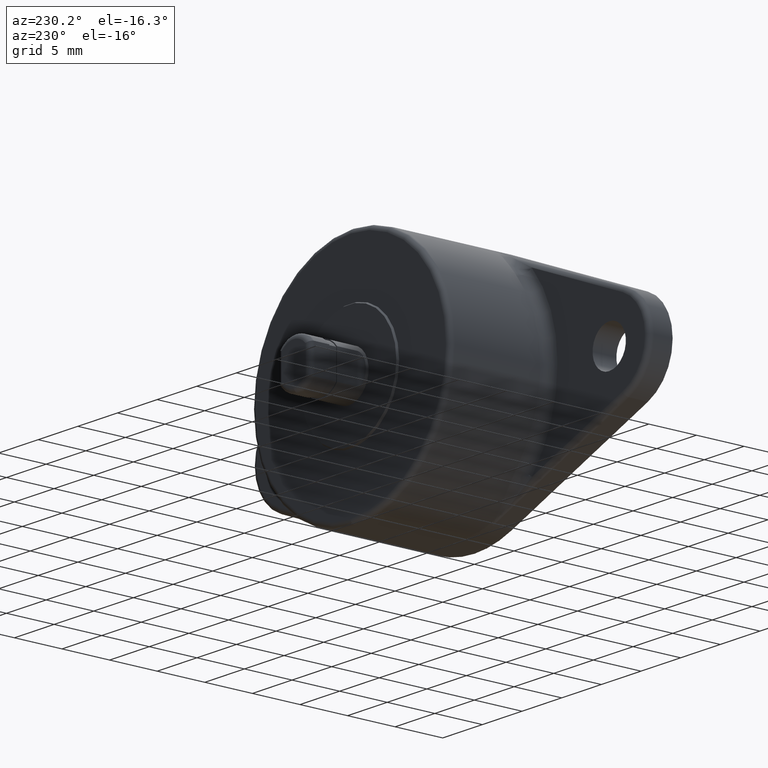
[diagram: clean part render]
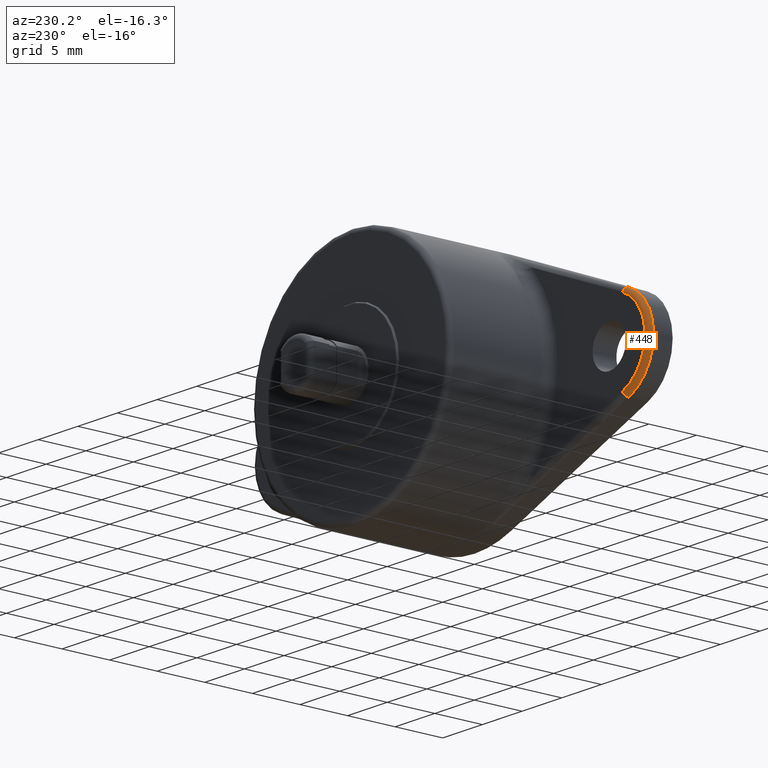
[diagram: same view with one face highlighted and labeled with its STEP entity id]
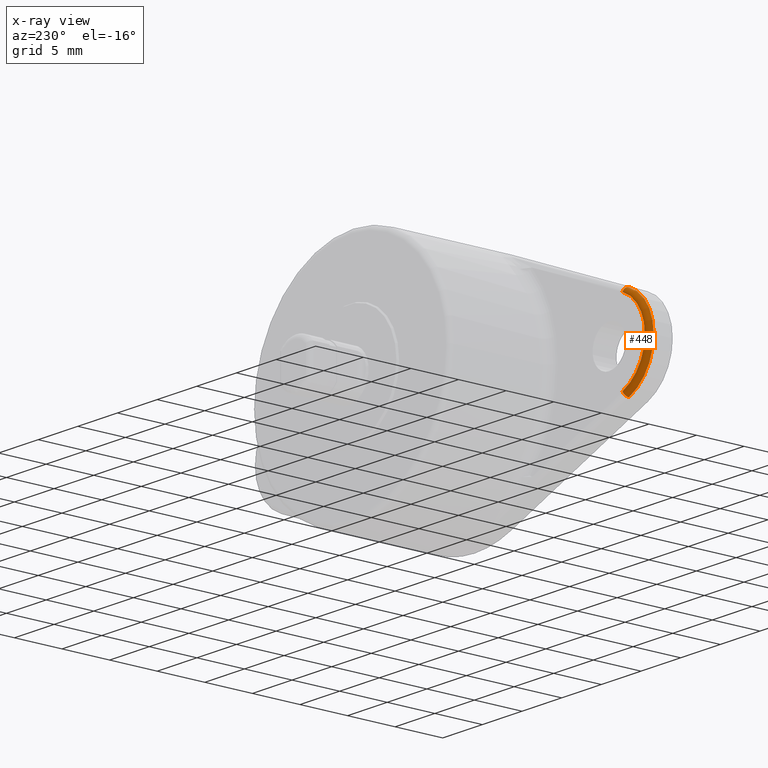
[diagram: x-ray of the same camera — body ghosted, the highlighted face saturated]
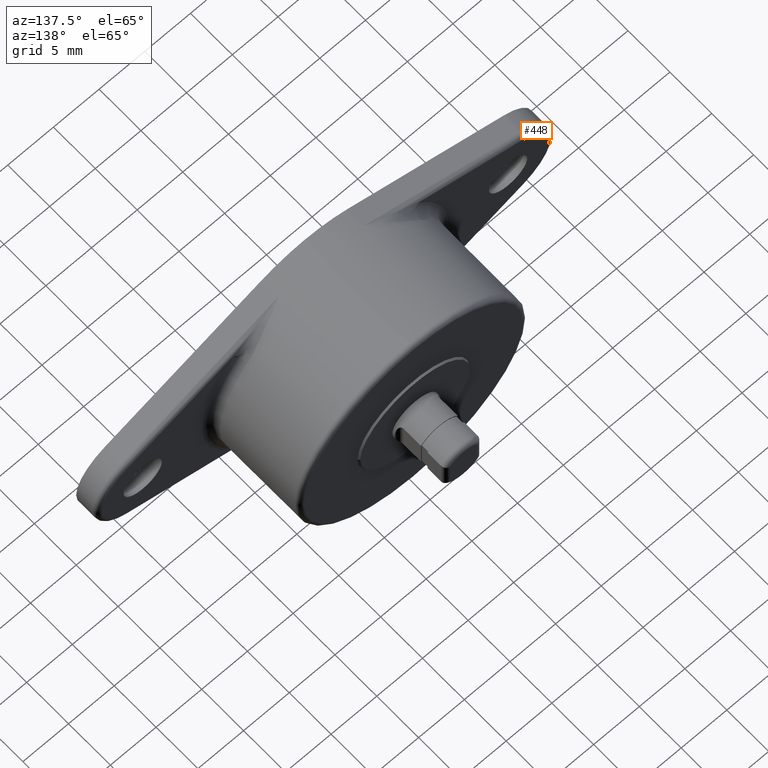
[diagram: same view with one face highlighted and labeled with its STEP entity id]
A machine part, auxiliary view. The second image highlights one B-rep face of the part: STEP entity #448.
The next image is the same camera in x-ray: the body ghosted, the highlighted face saturated — about 0% of this face is hidden behind the body in this view.
A second angle (auxiliary view) of the same face is appended — the face is thin or edge-on in the first view.
In plain terms, the highlighted toroidal blend (fillet) surface has major radius 4.5 mm and minor (blend) radius 0.5 mm.
Its self-contained STEP definition (entity closure, byte-faithful):
#66 = DIRECTION ( 'NONE',  ( 0.0000000000000000000, -1.000000000000000000, 0.0000000000000000000 ) ) ;
#189 = CARTESIAN_POINT ( 'NONE',  ( -21.68749999959866800, 1.999999999115181800, 4.171611647764398100 ) ) ;
#267 = EDGE_CURVE ( 'NONE', #1635, #756, #1520, .T. ) ;
#328 = EDGE_CURVE ( 'NONE', #1635, #1227, #1928, .T. ) ;
#337 = DIRECTION ( 'NONE',  ( 0.3750000000181397700, 0.0000000000000000000, -0.9270248108796200800 ) ) ;
#406 = EDGE_CURVE ( 'NONE', #1698, #756, #1216, .T. ) ;
#437 = CARTESIAN_POINT ( 'NONE',  ( -21.68749999959866800, 2.500000000000000400, 4.171611647764398100 ) ) ;
#442 = DIRECTION ( 'NONE',  ( -0.9270248108836987000, 0.0000000000000000000, 0.3750000000080569400 ) ) ;
#448 = ADVANCED_FACE ( 'NONE', ( #1174 ), #1988, .T. ) ;
#494 = EDGE_LOOP ( 'NONE', ( #1022, #1932, #1131, #1801 ) ) ;
#516 = AXIS2_PLACEMENT_3D ( 'NONE', #985, #66, #1136 ) ;
#634 = DIRECTION ( 'NONE',  ( -0.0000000000000000000, 1.000000000000000000, -0.0000000000000000000 ) ) ;
#746 = AXIS2_PLACEMENT_3D ( 'NONE', #1366, #442, #1517 ) ;
#756 = VERTEX_POINT ( 'NONE', #1578 ) ;
#985 = CARTESIAN_POINT ( 'NONE',  ( -19.99999999996221300, 1.999999999115181800, -9.341074212250288200E-011 ) ) ;
#1022 = ORIENTED_EDGE ( 'NONE', *, *, #267, .T. ) ;
#1131 = ORIENTED_EDGE ( 'NONE', *, *, #1710, .F. ) ;
#1136 = DIRECTION ( 'NONE',  ( 0.0000000000000000000, 0.0000000000000000000, 1.000000000000000000 ) ) ;
#1165 = CIRCLE ( 'NONE', #1251, 0.5000000008848184400 ) ;
#1174 = FACE_OUTER_BOUND ( 'NONE', #494, .T. ) ;
#1216 = CIRCLE ( 'NONE', #516, 4.999999999697704000 ) ;
#1227 = VERTEX_POINT ( 'NONE', #437 ) ;
#1251 = AXIS2_PLACEMENT_3D ( 'NONE', #189, #1262, #337 ) ;
#1262 = DIRECTION ( 'NONE',  ( 0.9270248108796200800, -0.0000000000000000000, 0.3750000000181397700 ) ) ;
#1366 = CARTESIAN_POINT ( 'NONE',  ( -21.68749999955332100, 1.999999999115181800, -4.171611647969560200 ) ) ;
#1460 = DIRECTION ( 'NONE',  ( 0.0000000000000000000, 0.0000000000000000000, 1.000000000000000000 ) ) ;
#1481 = AXIS2_PLACEMENT_3D ( 'NONE', #1763, #1908, #1460 ) ;
#1517 = DIRECTION ( 'NONE',  ( 0.3750000000080575500, 0.0000000000000000000, 0.9270248108836984800 ) ) ;
#1520 = CIRCLE ( 'NONE', #746, 0.5000000008848184400 ) ;
#1556 = CARTESIAN_POINT ( 'NONE',  ( -19.99999999996221300, 2.500000000000000400, -9.341074212250288200E-011 ) ) ;
#1572 = CARTESIAN_POINT ( 'NONE',  ( -21.87499999993954300, 1.999999999115181800, 4.635124054024457200 ) ) ;
#1578 = CARTESIAN_POINT ( 'NONE',  ( -21.87499999988915500, 1.999999999115181800, -4.635124054231659400 ) ) ;
#1582 = AXIS2_PLACEMENT_3D ( 'NONE', #1556, #634, #1708 ) ;
#1635 = VERTEX_POINT ( 'NONE', #1827 ) ;
#1698 = VERTEX_POINT ( 'NONE', #1572 ) ;
#1708 = DIRECTION ( 'NONE',  ( 0.0000000000000000000, 0.0000000000000000000, 1.000000000000000000 ) ) ;
#1710 = EDGE_CURVE ( 'NONE', #1227, #1698, #1165, .T. ) ;
#1763 = CARTESIAN_POINT ( 'NONE',  ( -19.99999999996221300, 1.999999999115181800, -9.341074212250288200E-011 ) ) ;
#1801 = ORIENTED_EDGE ( 'NONE', *, *, #328, .F. ) ;
#1827 = CARTESIAN_POINT ( 'NONE',  ( -21.68749999955332100, 2.500000000000000400, -4.171611647969560200 ) ) ;
#1908 = DIRECTION ( 'NONE',  ( -0.0000000000000000000, 1.000000000000000000, -0.0000000000000000000 ) ) ;
#1928 = CIRCLE ( 'NONE', #1582, 4.499999998812884700 ) ;
#1932 = ORIENTED_EDGE ( 'NONE', *, *, #406, .F. ) ;
#1988 = TOROIDAL_SURFACE ( 'NONE', #1481, 4.499999998812884700, 0.5000000008848184400 ) ;